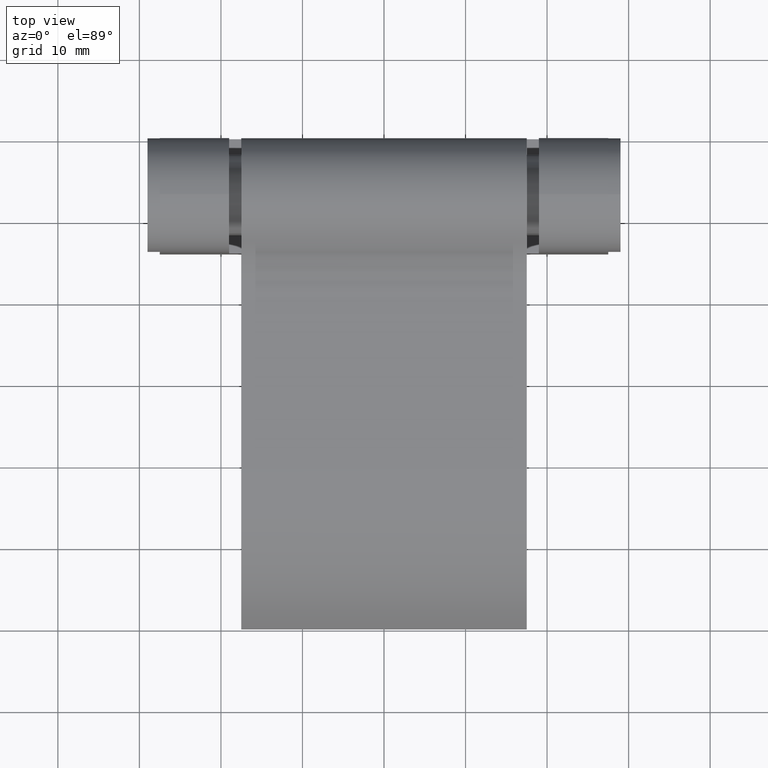
[diagram: clean part render]
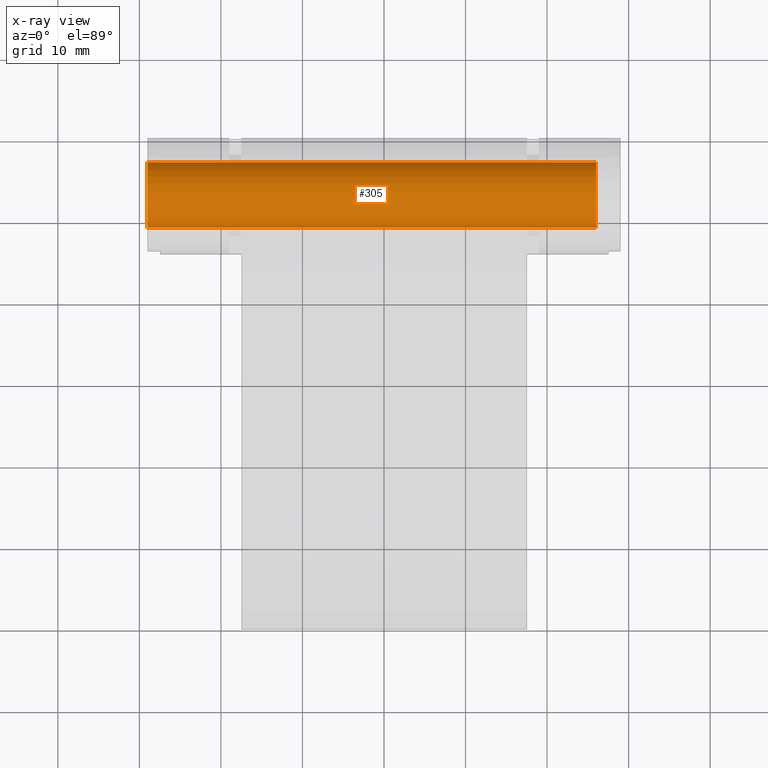
[diagram: x-ray — body ghosted, one internal face saturated and labeled with its STEP entity id]
A machine part, top view, then the same camera in x-ray: the body is ghosted and one INTERNAL B-rep face — a face not visible from any outside direction — is saturated and labeled: STEP entity #305.
In plain terms, the highlighted cylindrical surface (bore or boss wall) has radius 4 mm, axis along (1, -0, 0).
Its self-contained STEP definition (entity closure, byte-faithful):
#255=CARTESIAN_POINT('',(-29.0,-6.999999999999999,16.0));
#256=DIRECTION('',(1.0,-6.123234E-017,3.749399E-033));
#257=DIRECTION('',(6.123234E-017,1.0,-6.123234E-017));
#258=AXIS2_PLACEMENT_3D('',#255,#256,#257);
#259=CYLINDRICAL_SURFACE('',#258,4.0);
#260=CARTESIAN_POINT('',(-29.0,-2.999999999999999,16.0));
#261=VERTEX_POINT('',#260);
#262=CARTESIAN_POINT('',(-29.0,-10.999999999999998,16.0));
#263=VERTEX_POINT('',#262);
#264=CARTESIAN_POINT('',(-29.0,-6.999999999999999,16.0));
#265=DIRECTION('',(1.0,-6.123234E-017,3.749399E-033));
#266=DIRECTION('',(6.123234E-017,1.0,-6.123234E-017));
#267=AXIS2_PLACEMENT_3D('',#264,#265,#266);
#268=CIRCLE('',#267,4.0);
#269=EDGE_CURVE('',#261,#263,#268,.T.);
#270=ORIENTED_EDGE('',*,*,#269,.T.);
#271=CARTESIAN_POINT('',(-29.0,-6.999999999999999,16.0));
#272=DIRECTION('',(1.0,-6.123234E-017,3.749399E-033));
#273=DIRECTION('',(6.123234E-017,1.0,-6.123234E-017));
#274=AXIS2_PLACEMENT_3D('',#271,#272,#273);
#275=CIRCLE('',#274,4.0);
#276=EDGE_CURVE('',#263,#261,#275,.T.);
#277=ORIENTED_EDGE('',*,*,#276,.T.);
#278=CARTESIAN_POINT('',(26.0,-2.999999999999999,16.0));
#279=VERTEX_POINT('',#278);
#280=CARTESIAN_POINT('',(-29.0,-2.999999999999999,16.0));
#281=DIRECTION('',(1.0,0.0,0.0));
#282=VECTOR('',#281,55.0);
#283=LINE('',#280,#282);
#284=EDGE_CURVE('',#261,#279,#283,.T.);
#285=ORIENTED_EDGE('',*,*,#284,.T.);
#286=CARTESIAN_POINT('',(26.0,-10.999999999999998,16.0));
#287=VERTEX_POINT('',#286);
#288=CARTESIAN_POINT('',(26.0,-6.999999999999999,16.0));
#289=DIRECTION('',(1.0,-6.123234E-017,3.749399E-033));
#290=DIRECTION('',(6.123234E-017,1.0,-6.123234E-017));
#291=AXIS2_PLACEMENT_3D('',#288,#289,#290);
#292=CIRCLE('',#291,4.0);
#293=EDGE_CURVE('',#287,#279,#292,.T.);
#294=ORIENTED_EDGE('',*,*,#293,.F.);
#295=CARTESIAN_POINT('',(26.0,-6.999999999999999,16.0));
#296=DIRECTION('',(1.0,-6.123234E-017,3.749399E-033));
#297=DIRECTION('',(6.123234E-017,1.0,-6.123234E-017));
#298=AXIS2_PLACEMENT_3D('',#295,#296,#297);
#299=CIRCLE('',#298,4.0);
#300=EDGE_CURVE('',#279,#287,#299,.T.);
#301=ORIENTED_EDGE('',*,*,#300,.F.);
#302=ORIENTED_EDGE('',*,*,#284,.F.);
#303=EDGE_LOOP('',(#270,#277,#285,#294,#301,#302));
#304=FACE_OUTER_BOUND('',#303,.T.);
#305=ADVANCED_FACE('',(#304),#259,.T.);